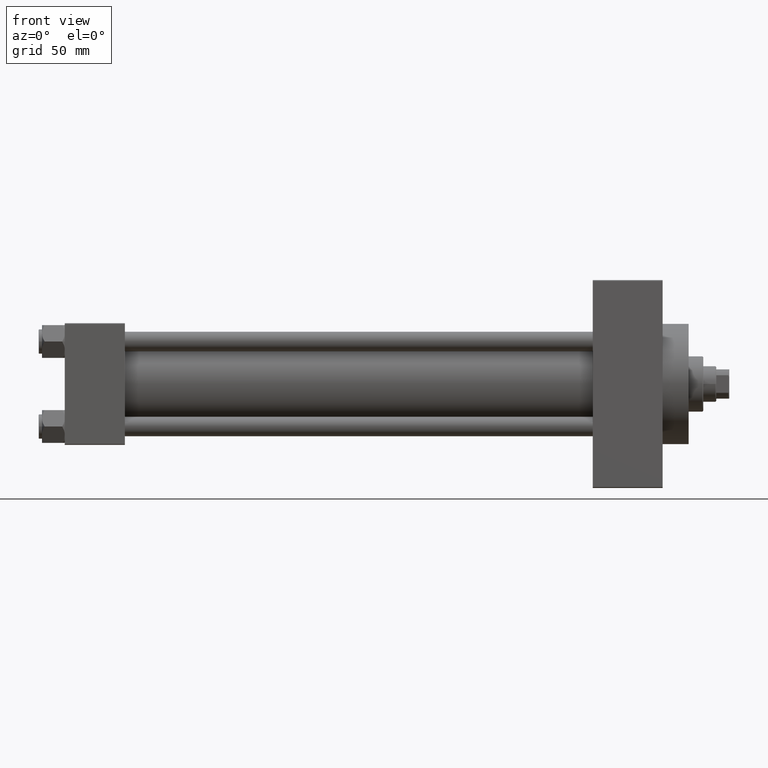
[diagram: clean part render]
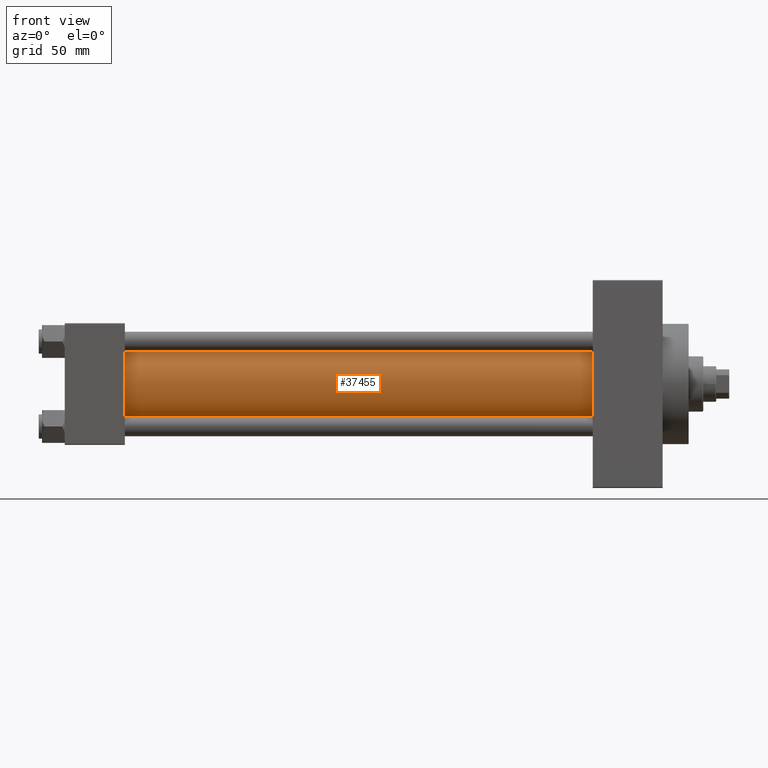
[diagram: same view with one face highlighted and labeled with its STEP entity id]
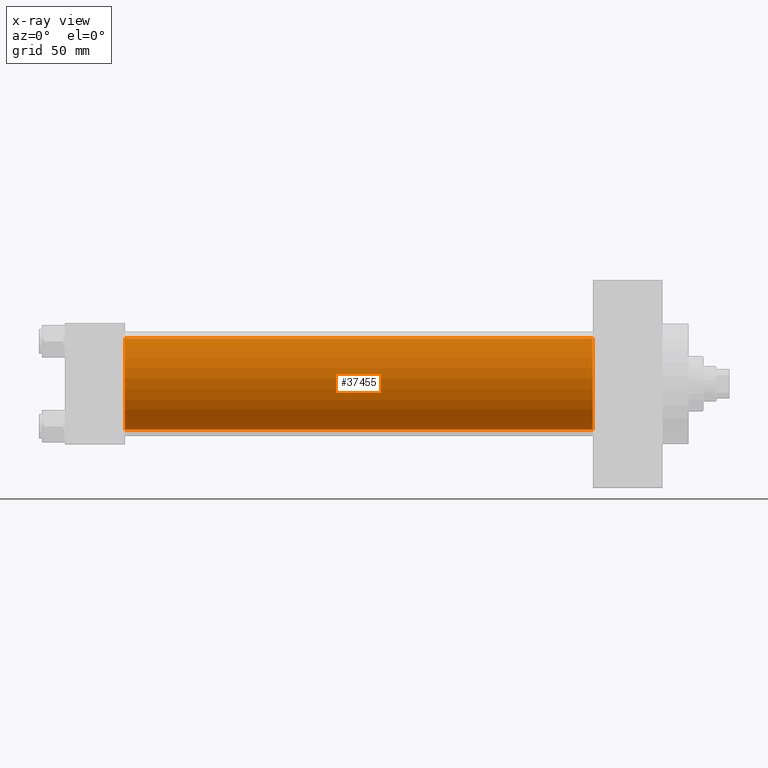
[diagram: x-ray of the same camera — body ghosted, the highlighted face saturated]
A machine part, front view. The second image highlights one B-rep face of the part: STEP entity #37455.
The next image is the same camera in x-ray: the body ghosted, the highlighted face saturated — about 0% of this face is hidden behind the body in this view.
In plain terms, the highlighted cylindrical surface (partial cylindrical patch) has radius 28 mm, axis along (-1, -0, -0).
Its self-contained STEP definition (entity closure, byte-faithful):
#1561 = CARTESIAN_POINT ( 'NONE',  ( 324.9999999999999432, 8.269258236473784371E-16, -28.00000000000000000 ) ) ;
#2144 = DIRECTION ( 'NONE',  ( 0.000000000000000000, 0.000000000000000000, -1.000000000000000000 ) ) ;
#2761 = FACE_OUTER_BOUND ( 'NONE', #19844, .T. ) ;
#3684 = DIRECTION ( 'NONE',  ( 0.000000000000000000, 0.000000000000000000, 1.000000000000000000 ) ) ;
#4494 = CIRCLE ( 'NONE', #31283, 28.00000000000000000 ) ;
#5740 = DIRECTION ( 'NONE',  ( 1.000000000000000000, 0.000000000000000000, 0.000000000000000000 ) ) ;
#7324 = VECTOR ( 'NONE', #19527, 1000.000000000000000 ) ;
#9596 = VERTEX_POINT ( 'NONE', #39631 ) ;
#10566 = ORIENTED_EDGE ( 'NONE', *, *, #19562, .F. ) ;
#10630 = DIRECTION ( 'NONE',  ( -1.000000000000000000, -0.000000000000000000, -0.000000000000000000 ) ) ;
#11567 = VERTEX_POINT ( 'NONE', #34968 ) ;
#15161 = DIRECTION ( 'NONE',  ( 1.000000000000000000, -0.000000000000000000, 0.000000000000000000 ) ) ;
#15645 = CARTESIAN_POINT ( 'NONE',  ( 36.99999999999997868, -2.602085213965210642E-15, 0.000000000000000000 ) ) ;
#17861 = ORIENTED_EDGE ( 'NONE', *, *, #38535, .T. ) ;
#18809 = ORIENTED_EDGE ( 'NONE', *, *, #44937, .T. ) ;
#19475 = CARTESIAN_POINT ( 'NONE',  ( 324.9999999999999432, 8.269258236473784371E-16, -28.00000000000000000 ) ) ;
#19527 = DIRECTION ( 'NONE',  ( -1.000000000000000000, -0.000000000000000000, -0.000000000000000000 ) ) ;
#19562 = EDGE_CURVE ( 'NONE', #33990, #9596, #45204, .T. ) ;
#19844 = EDGE_LOOP ( 'NONE', ( #10566, #46388, #18809, #17861 ) ) ;
#20250 = VERTEX_POINT ( 'NONE', #25149 ) ;
#24182 = CARTESIAN_POINT ( 'NONE',  ( 324.9999999999999432, -2.602085213965210642E-15, 28.00000000000000000 ) ) ;
#25149 = CARTESIAN_POINT ( 'NONE',  ( 36.99999999999997868, -2.602085213965210642E-15, 28.00000000000000000 ) ) ;
#26392 = EDGE_CURVE ( 'NONE', #11567, #33990, #4494, .T. ) ;
#31283 = AXIS2_PLACEMENT_3D ( 'NONE', #38588, #5740, #2144 ) ;
#33990 = VERTEX_POINT ( 'NONE', #19475 ) ;
#34065 = VECTOR ( 'NONE', #38813, 1000.000000000000000 ) ;
#34968 = CARTESIAN_POINT ( 'NONE',  ( 324.9999999999999432, -2.602085213965210642E-15, 28.00000000000000000 ) ) ;
#35813 = CARTESIAN_POINT ( 'NONE',  ( 324.9999999999999432, -2.602085213965210642E-15, 0.000000000000000000 ) ) ;
#36886 = AXIS2_PLACEMENT_3D ( 'NONE', #35813, #10630, #42784 ) ;
#37455 = ADVANCED_FACE ( 'NONE', ( #2761 ), #47081, .T. ) ;
#38535 = EDGE_CURVE ( 'NONE', #20250, #9596, #46888, .T. ) ;
#38588 = CARTESIAN_POINT ( 'NONE',  ( 324.9999999999999432, -2.602085213965210642E-15, 0.000000000000000000 ) ) ;
#38813 = DIRECTION ( 'NONE',  ( -1.000000000000000000, -0.000000000000000000, -0.000000000000000000 ) ) ;
#39631 = CARTESIAN_POINT ( 'NONE',  ( 36.99999999999997868, 8.269258236473784371E-16, -28.00000000000000000 ) ) ;
#42413 = LINE ( 'NONE', #24182, #34065 ) ;
#42784 = DIRECTION ( 'NONE',  ( 0.000000000000000000, 0.000000000000000000, 1.000000000000000000 ) ) ;
#44937 = EDGE_CURVE ( 'NONE', #11567, #20250, #42413, .T. ) ;
#45204 = LINE ( 'NONE', #1561, #7324 ) ;
#45354 = AXIS2_PLACEMENT_3D ( 'NONE', #15645, #15161, #3684 ) ;
#46388 = ORIENTED_EDGE ( 'NONE', *, *, #26392, .F. ) ;
#46888 = CIRCLE ( 'NONE', #45354, 28.00000000000000000 ) ;
#47081 = CYLINDRICAL_SURFACE ( 'NONE', #36886, 28.00000000000000000 ) ;